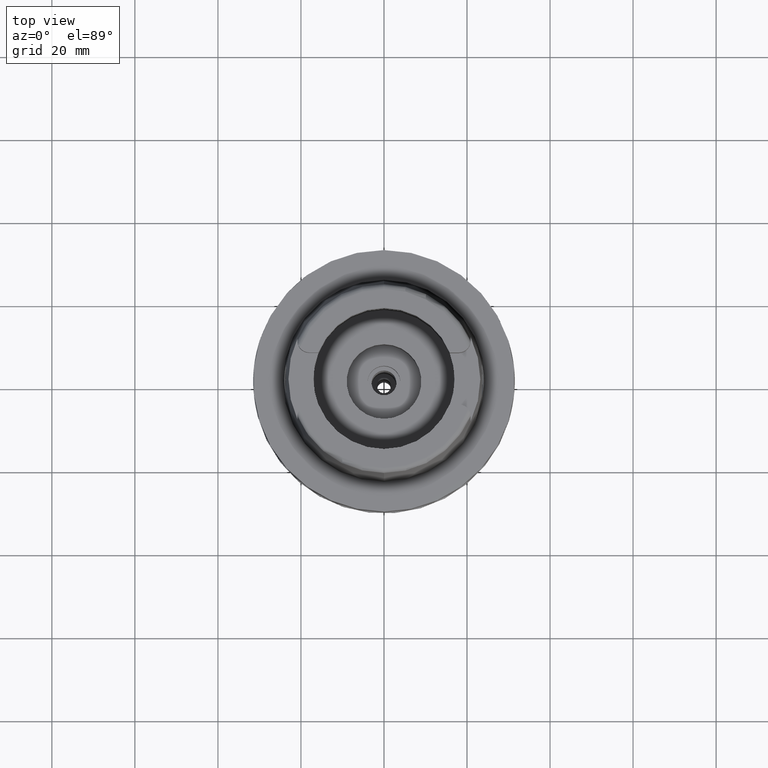
[diagram: clean part render]
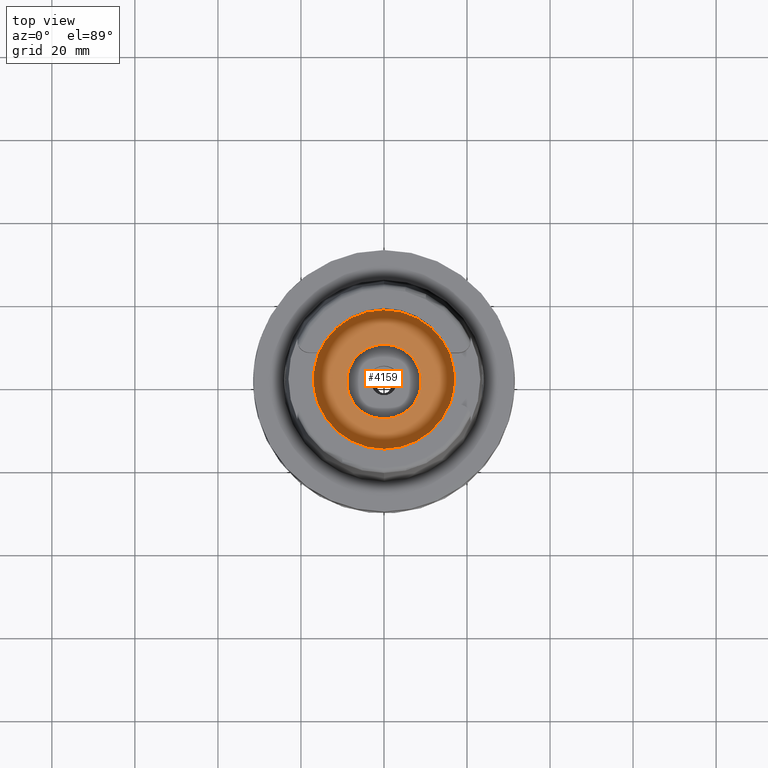
[diagram: same view with one face highlighted and labeled with its STEP entity id]
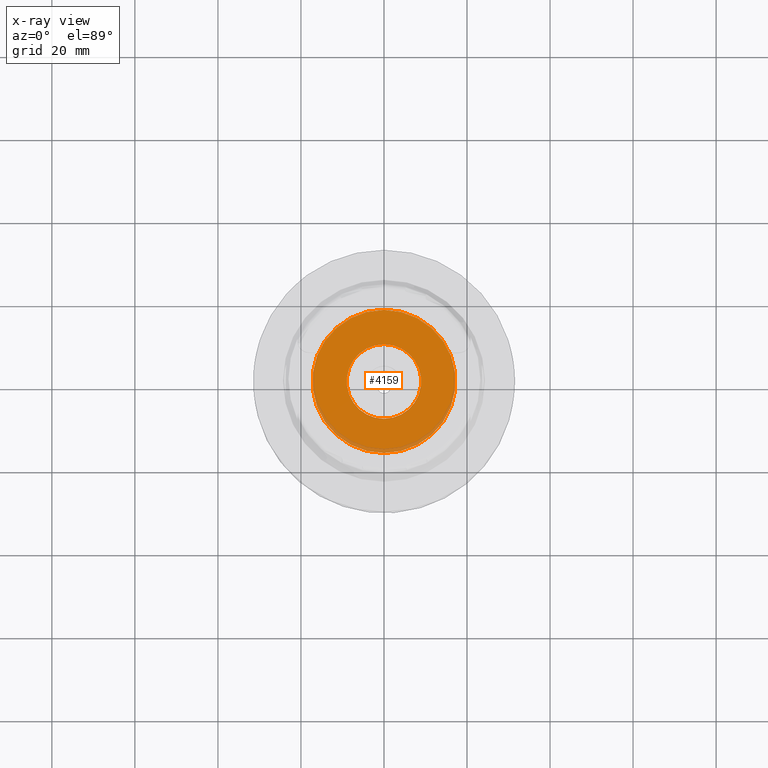
[diagram: x-ray of the same camera — body ghosted, the highlighted face saturated]
A machine part, top view. The second image highlights one B-rep face of the part: STEP entity #4159.
The next image is the same camera in x-ray: the body ghosted, the highlighted face saturated — about 6% of this face is hidden behind the body in this view.
In plain terms, the highlighted planar face has unit normal (0, 0, -1).
Its self-contained STEP definition (entity closure, byte-faithful):
#55 = CARTESIAN_POINT ( 'NONE',  ( 0.0000000000000000000, -9.000000000000000000, -9.950000000000001066 ) ) ;
#140 = DIRECTION ( 'NONE',  ( 0.0000000000000000000, 0.0000000000000000000, -1.000000000000000000 ) ) ;
#261 = EDGE_LOOP ( 'NONE', ( #3202, #5128 ) ) ;
#306 = AXIS2_PLACEMENT_3D ( 'NONE', #1023, #2722, #3584 ) ;
#341 = VERTEX_POINT ( 'NONE', #4998 ) ;
#450 = DIRECTION ( 'NONE',  ( 0.0000000000000000000, -1.000000000000000000, 0.0000000000000000000 ) ) ;
#467 = DIRECTION ( 'NONE',  ( 0.0000000000000000000, -1.000000000000000000, 0.0000000000000000000 ) ) ;
#482 = CIRCLE ( 'NONE', #306, 17.25000000000000000 ) ;
#634 = VERTEX_POINT ( 'NONE', #2696 ) ;
#827 = VERTEX_POINT ( 'NONE', #2016 ) ;
#855 = CARTESIAN_POINT ( 'NONE',  ( 0.0000000000000000000, 1.102794442632000083E-14, -9.950000000000001066 ) ) ;
#917 = CIRCLE ( 'NONE', #2240, 9.000000000000000000 ) ;
#1023 = CARTESIAN_POINT ( 'NONE',  ( 0.0000000000000000000, 1.707341335030999953E-14, -9.950000000000001066 ) ) ;
#1107 = EDGE_CURVE ( 'NONE', #634, #341, #482, .T. ) ;
#1268 = FACE_OUTER_BOUND ( 'NONE', #261, .T. ) ;
#1387 = DIRECTION ( 'NONE',  ( 0.0000000000000000000, 0.0000000000000000000, 1.000000000000000000 ) ) ;
#1546 = AXIS2_PLACEMENT_3D ( 'NONE', #3880, #140, #5186 ) ;
#1649 = FACE_BOUND ( 'NONE', #3269, .T. ) ;
#1898 = EDGE_CURVE ( 'NONE', #827, #4335, #5380, .T. ) ;
#1899 = AXIS2_PLACEMENT_3D ( 'NONE', #4351, #1387, #3387 ) ;
#2016 = CARTESIAN_POINT ( 'NONE',  ( 0.0000000000000000000, 9.000000000000000000, -9.950000000000001066 ) ) ;
#2240 = AXIS2_PLACEMENT_3D ( 'NONE', #2997, #2498, #450 ) ;
#2498 = DIRECTION ( 'NONE',  ( 0.0000000000000000000, 0.0000000000000000000, 1.000000000000000000 ) ) ;
#2651 = ORIENTED_EDGE ( 'NONE', *, *, #3720, .F. ) ;
#2696 = CARTESIAN_POINT ( 'NONE',  ( 0.0000000000000000000, 17.25000000000000000, -9.950000000000001066 ) ) ;
#2722 = DIRECTION ( 'NONE',  ( 0.0000000000000000000, 0.0000000000000000000, -1.000000000000000000 ) ) ;
#2997 = CARTESIAN_POINT ( 'NONE',  ( 0.0000000000000000000, 1.707341335030999953E-14, -9.950000000000001066 ) ) ;
#3068 = EDGE_CURVE ( 'NONE', #341, #634, #3315, .T. ) ;
#3137 = AXIS2_PLACEMENT_3D ( 'NONE', #855, #3410, #467 ) ;
#3202 = ORIENTED_EDGE ( 'NONE', *, *, #1107, .F. ) ;
#3269 = EDGE_LOOP ( 'NONE', ( #4763, #2651 ) ) ;
#3315 = CIRCLE ( 'NONE', #1546, 17.25000000000000000 ) ;
#3387 = DIRECTION ( 'NONE',  ( 0.0000000000000000000, 1.000000000000000000, 0.0000000000000000000 ) ) ;
#3410 = DIRECTION ( 'NONE',  ( 0.0000000000000000000, 0.0000000000000000000, -1.000000000000000000 ) ) ;
#3584 = DIRECTION ( 'NONE',  ( 0.0000000000000000000, 1.000000000000000000, 0.0000000000000000000 ) ) ;
#3720 = EDGE_CURVE ( 'NONE', #4335, #827, #917, .T. ) ;
#3880 = CARTESIAN_POINT ( 'NONE',  ( 0.0000000000000000000, 1.707341335030999953E-14, -9.950000000000001066 ) ) ;
#4159 = ADVANCED_FACE ( 'NONE', ( #1268, #1649 ), #4183, .F. ) ;
#4183 = PLANE ( 'NONE',  #3137 ) ;
#4335 = VERTEX_POINT ( 'NONE', #55 ) ;
#4351 = CARTESIAN_POINT ( 'NONE',  ( 0.0000000000000000000, 1.707341335030999953E-14, -9.950000000000001066 ) ) ;
#4763 = ORIENTED_EDGE ( 'NONE', *, *, #1898, .F. ) ;
#4998 = CARTESIAN_POINT ( 'NONE',  ( 0.0000000000000000000, -17.25000000000000000, -9.950000000000001066 ) ) ;
#5128 = ORIENTED_EDGE ( 'NONE', *, *, #3068, .F. ) ;
#5186 = DIRECTION ( 'NONE',  ( 0.0000000000000000000, -1.000000000000000000, 0.0000000000000000000 ) ) ;
#5380 = CIRCLE ( 'NONE', #1899, 9.000000000000000000 ) ;